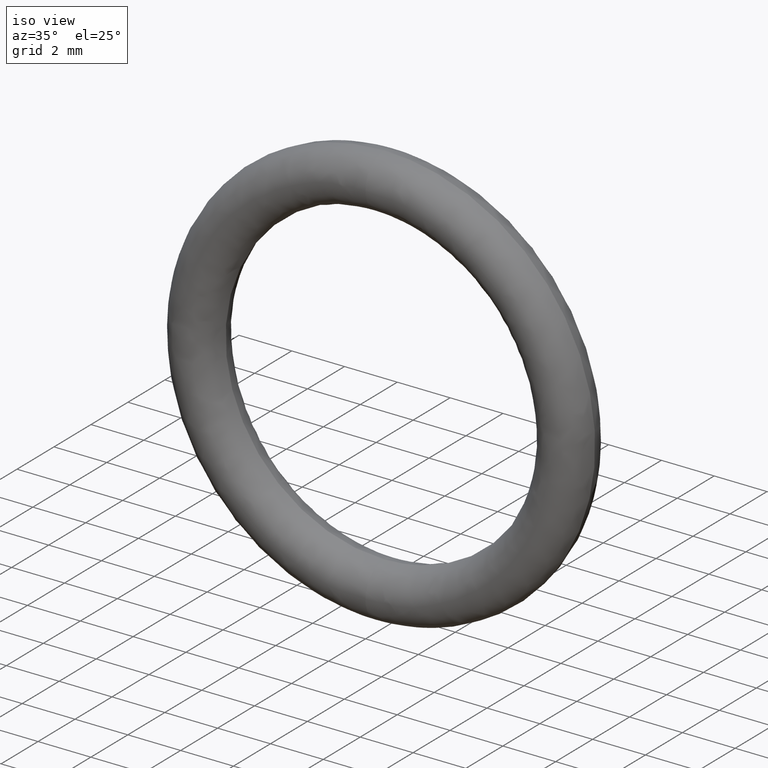
[diagram: clean part render]
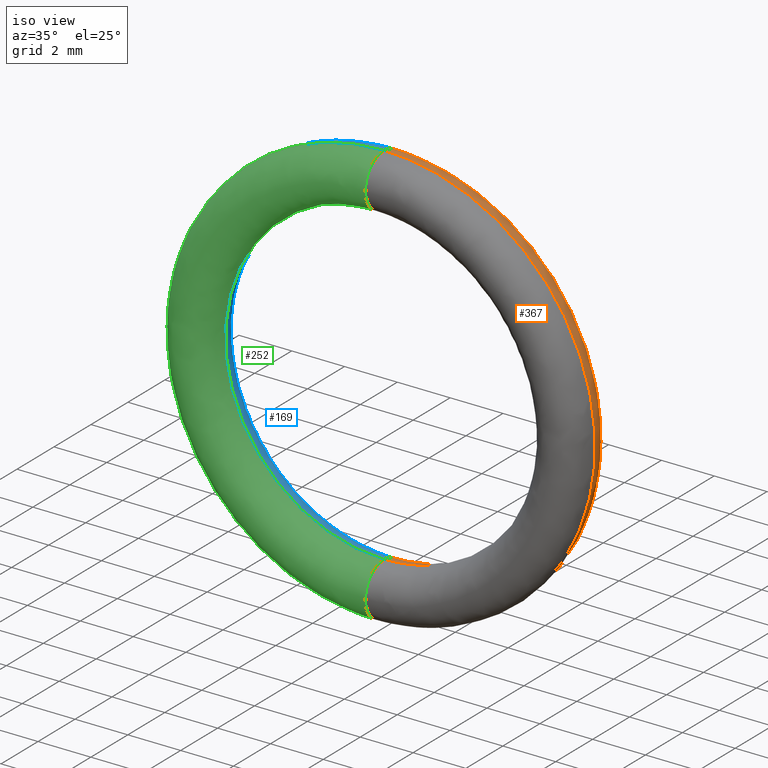
[diagram: same view with three faces highlighted in distinct colors, each labeled with its STEP entity id]
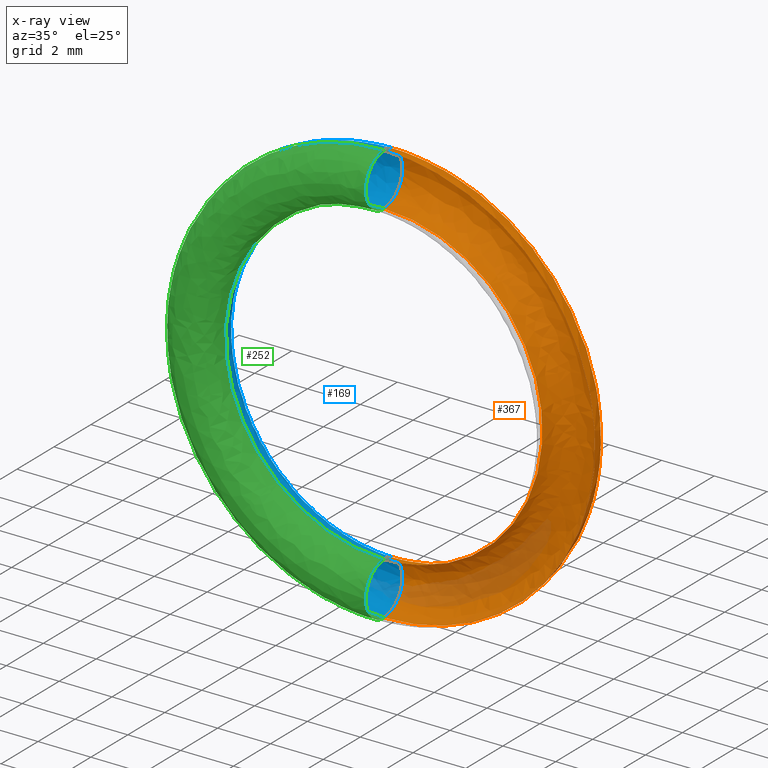
[diagram: x-ray of the same camera — body ghosted, the three highlighted faces saturated]
A machine part, iso view with three faces highlighted in distinct colors.
The next image is the same camera in x-ray (body ghosted, the three faces saturated) — at least one of them is partly hidden behind the body in this view.
Their STEP definitions:

[orange] entity #367 — the highlighted face is a freeform B-spline surface patch.
#38=CARTESIAN_POINT('',(6.123032E-017,1.000000065129646,-7.999799225598174));
#39=VERTEX_POINT('',#38);
#40=CARTESIAN_POINT('',(6.123032E-017,1.000000065129646,7.999799225598174));
#41=VERTEX_POINT('',#40);
#86=CARTESIAN_POINT('',(6.123032E-017,1.000000065129646,5.999798930573886));
#87=VERTEX_POINT('',#86);
#88=CARTESIAN_POINT('',(6.123032E-017,1.000000065129646,5.999798930573886));
#89=CARTESIAN_POINT('',(6.699125E-017,1.094086241526819,5.999764893057588));
#90=CARTESIAN_POINT('',(7.600648E-017,1.241321081152081,6.020742658278919));
#91=CARTESIAN_POINT('',(8.869589E-017,1.448561629321055,6.099223798787779));
#92=CARTESIAN_POINT('',(9.856498E-017,1.609741433330828,6.198538041564746));
#93=CARTESIAN_POINT('',(1.064438E-016,1.738416297167362,6.319562492797795));
#94=CARTESIAN_POINT('',(1.127738E-016,1.841796678862577,6.452031567535729));
#95=CARTESIAN_POINT('',(1.175067E-016,1.919093863317240,6.592469335370580));
#96=CARTESIAN_POINT('',(1.211998E-016,1.979408053927781,6.771348001574316));
#97=CARTESIAN_POINT('',(1.227582E-016,2.004859383017315,6.950510155059310));
#98=CARTESIAN_POINT('',(1.221659E-016,1.995186789553282,7.147344955253653));
#99=CARTESIAN_POINT('',(1.190040E-016,1.943547352177764,7.359123844044373));
#100=CARTESIAN_POINT('',(1.123689E-016,1.835183617097836,7.567985840433536));
#101=CARTESIAN_POINT('',(1.035203E-016,1.690670342100340,7.731378898136581));
#102=CARTESIAN_POINT('',(9.356855E-017,1.528140822511862,7.856626901353724));
#103=CARTESIAN_POINT('',(8.362729E-017,1.365782427419261,7.937110420824762));
#104=CARTESIAN_POINT('',(7.225038E-017,1.179977231378750,7.988511371198003));
#105=CARTESIAN_POINT('',(6.523766E-017,1.065447101381284,7.999808040164814));
#106=CARTESIAN_POINT('',(6.123032E-017,1.000000065129646,7.999799225598174));
#107=B_SPLINE_CURVE_WITH_KNOTS('',3,(#88,#89,#90,#91,#92,#93,#94,#95,#96,#97,#98,#99,#100,#101,#102,#103,#104,#105,#106),.UNSPECIFIED.,.F.,.U.,(4,1,1,1,1,1,1,1,1,1,1,1,1,1,1,1,4),(0.000000048395852,0.282245399074723,0.441782959219308,0.662683887416079,0.846764584853097,0.969486267368082,1.165836927367291,1.325377546549631,1.534002157690523,1.705786681027012,1.914418301691922,2.184399394362720,2.405297601570827,2.564833576208381,2.798007108692503,2.945272355178036,3.141612829193198),.UNSPECIFIED.);
#108=EDGE_CURVE('',#87,#41,#107,.T.);
#110=CARTESIAN_POINT('',(6.123032E-017,1.000000065129646,-5.999798930573886));
#111=VERTEX_POINT('',#110);
#145=CARTESIAN_POINT('',(6.123032E-017,1.000000065129646,-7.999799225598174));
#146=CARTESIAN_POINT('',(6.724200E-017,1.098181484614903,-7.999847275810469));
#147=CARTESIAN_POINT('',(7.625679E-017,1.245409055228121,-7.977925692230920));
#148=CARTESIAN_POINT('',(8.891060E-017,1.452068165282311,-7.898214146095489));
#149=CARTESIAN_POINT('',(9.770659E-017,1.595722475328188,-7.809695072823265));
#150=CARTESIAN_POINT('',(1.061236E-016,1.733186881214073,-7.686628971562596));
#151=CARTESIAN_POINT('',(1.122567E-016,1.833350977315770,-7.561471643799503));
#152=CARTESIAN_POINT('',(1.181919E-016,1.930283424277205,-7.385398818177375));
#153=CARTESIAN_POINT('',(1.217815E-016,1.988908901040322,-7.196303213653674));
#154=CARTESIAN_POINT('',(1.227826E-016,2.005258738631682,-6.991557635984930));
#155=CARTESIAN_POINT('',(1.217478E-016,1.988358287188888,-6.819948799002166));
#156=CARTESIAN_POINT('',(1.193230E-016,1.948756167662934,-6.673368474051230));
#157=CARTESIAN_POINT('',(1.151712E-016,1.880949949403756,-6.515150672830640));
#158=CARTESIAN_POINT('',(1.092023E-016,1.783467101693690,-6.367303758291324));
#159=CARTESIAN_POINT('',(9.978045E-017,1.629592200475450,-6.213427763042009));
#160=CARTESIAN_POINT('',(8.941561E-017,1.460315931040494,-6.103297730484718));
#161=CARTESIAN_POINT('',(7.600702E-017,1.241329862368832,-6.020377366189348));
#162=CARTESIAN_POINT('',(6.674086E-017,1.089996992920399,-5.999766098632553));
#163=CARTESIAN_POINT('',(6.123032E-017,1.000000065129646,-5.999798930573886));
#164=B_SPLINE_CURVE_WITH_KNOTS('',3,(#145,#146,#147,#148,#149,#150,#151,#152,#153,#154,#155,#156,#157,#158,#159,#160,#161,#162,#163),.UNSPECIFIED.,.F.,.U.,(4,1,1,1,1,1,1,1,1,1,1,1,1,1,1,1,4),(0.000000048397231,0.294523590818859,0.441782959220290,0.662683887416879,0.797675805070888,0.994028050462003,1.141296162973666,1.399001870121232,1.583070621466952,1.754874938454073,1.914418301691940,2.037136718472902,2.270304715143282,2.442113946985195,2.687554544217792,2.871631199604533,3.141612829193199),.UNSPECIFIED.);
#165=EDGE_CURVE('',#39,#111,#164,.T.);
#253=CARTESIAN_POINT('',(-0.853049262361414,0.858059928644620,-5.949074689608555));
#254=CARTESIAN_POINT('',(5.966518462962403,0.858059928644619,-6.926945622692093));
#255=CARTESIAN_POINT('',(6.009805054836837,0.858059928644619,-0.037761215738551));
#256=CARTESIAN_POINT('',(6.053613288232359,0.858059928644620,6.934443925291647));
#257=CARTESIAN_POINT('',(-0.848835448838276,0.858059928644619,5.949677393552695));
#258=CARTESIAN_POINT('',(-0.829954271315265,1.992777953043124,-5.788012682112009));
#259=CARTESIAN_POINT('',(5.804984192248258,1.992777953043123,-6.739409270230601));
#260=CARTESIAN_POINT('',(5.847098866513865,1.992777953043124,-0.036738889153379));
#261=CARTESIAN_POINT('',(5.889721059662168,1.992777953043124,6.746704567870136));
#262=CARTESIAN_POINT('',(-0.825854540284056,1.992777953043125,5.788599068777883));
#263=CARTESIAN_POINT('',(-0.992660459638239,1.999980473495015,-6.922708308148188));
#264=CARTESIAN_POINT('',(6.943006953067386,1.999980473495014,-8.060618922143100));
#265=CARTESIAN_POINT('',(6.993377887176517,1.999980473495015,-0.043941267433683));
#266=CARTESIAN_POINT('',(7.044355835364359,1.999980473495014,8.069344407098534));
#267=CARTESIAN_POINT('',(-0.987757007688549,1.999980473495015,6.923409651435867));
#268=CARTESIAN_POINT('',(-1.157327400699918,2.007269790656037,-8.071078014926346));
#269=CARTESIAN_POINT('',(8.094743889530269,2.007269790656037,-9.397750312927942));
#270=CARTESIAN_POINT('',(8.153470578678931,2.007269790656037,-0.051230440709825));
#271=CARTESIAN_POINT('',(8.212904976106982,2.007269790656037,9.407923220214888));
#272=CARTESIAN_POINT('',(-1.151610542287466,2.007269790656038,8.071895700164282));
#273=CARTESIAN_POINT('',(-1.134069551976120,0.858761071348783,-7.908880255333333));
#274=CARTESIAN_POINT('',(7.932070536487101,0.858761071348782,-9.208891520688228));
#275=CARTESIAN_POINT('',(7.989617044080013,0.858761071348782,-0.050200905040521));
#276=CARTESIAN_POINT('',(8.047857037726097,0.858761071348783,9.218859991496254));
#277=CARTESIAN_POINT('',(-1.128467580524826,0.858761071348783,7.909681508229341));
#285=(BOUNDED_SURFACE()B_SPLINE_SURFACE(2,2,((#253,#258,#263,#268,#273),(#254,#259,#264,#269,#274),(#255,#260,#265,#270,#275),(#256,#261,#266,#271,#276),(#257,#262,#267,#272,#277)),.UNSPECIFIED.,.F.,.F.,.U.)B_SPLINE_SURFACE_WITH_KNOTS((3,2,3),(3,2,3),(0.0,14.531439999640661,29.176827316886250),(0.0,1.818754919642178,3.651771484687643),.UNSPECIFIED.)GEOMETRIC_REPRESENTATION_ITEM()RATIONAL_B_SPLINE_SURFACE(((0.976104167042247,0.645557476697766,0.987979841414918,0.642872394562174,0.981329466268909),(0.645557476697766,0.426946702812661,0.653411587602073,0.425170893522315,0.649013287150841),(0.987979841414918,0.653411587602073,1.0,0.650693837681440,0.993268713725490),(0.642872394562174,0.425170893522315,0.650693837681440,0.423402470396601,0.646313831182947),(0.981329466268909,0.649013287150841,0.993268713725490,0.646313831182947,0.986582737665889)))REPRESENTATION_ITEM('')SURFACE());
#286=ORIENTED_EDGE('',*,*,#165,.T.);
#287=CARTESIAN_POINT('',(6.123032E-017,1.000000065129646,5.999798930573886));
#288=CARTESIAN_POINT('',(0.343598049324435,1.000000065129647,5.999828125249786));
#289=CARTESIAN_POINT('',(0.932614422770054,1.000000065129646,5.949057508243413));
#290=CARTESIAN_POINT('',(1.674245597403185,1.000000065129647,5.772921721760320));
#291=CARTESIAN_POINT('',(2.334877692617898,1.000000065129648,5.541114421976934));
#292=CARTESIAN_POINT('',(2.965985984569997,1.000000065129640,5.235489364396499));
#293=CARTESIAN_POINT('',(3.540778316564819,1.000000065129654,4.856488689637322));
#294=CARTESIAN_POINT('',(4.121354443139100,1.000000065129632,4.383023424097880));
#295=CARTESIAN_POINT('',(4.622439059636544,1.000000065129655,3.856726341414461));
#296=CARTESIAN_POINT('',(5.043572456794694,1.000000065129651,3.266425950397035));
#297=CARTESIAN_POINT('',(5.345000202483017,1.000000065129607,2.745580065132709));
#298=CARTESIAN_POINT('',(5.585542508858479,1.000000065129679,2.220408720512541));
#299=CARTESIAN_POINT('',(5.828948754533784,1.000000065129618,1.498591634321473));
#300=CARTESIAN_POINT('',(5.968668454643379,1.000000065129657,0.772920713236293));
#301=CARTESIAN_POINT('',(6.009325717616557,1.000000065129644,0.036872119819441));
#302=CARTESIAN_POINT('',(5.979277991918344,1.000000065129648,-0.662793795992295));
#303=CARTESIAN_POINT('',(5.863529387432481,1.000000065129640,-1.342222613900919));
#304=CARTESIAN_POINT('',(5.651724962232671,1.000000065129662,-2.048204916997430));
#305=CARTESIAN_POINT('',(5.398679354030572,1.000000065129600,-2.648677051667067));
#306=CARTESIAN_POINT('',(5.095783280891556,1.000000065129714,-3.183351686069362));
#307=CARTESIAN_POINT('',(4.759347358314790,1.000000065129634,-3.667334561151465));
#308=CARTESIAN_POINT('',(4.411184960840287,1.000000065129622,-4.081111593245169));
#309=CARTESIAN_POINT('',(3.927675283305844,1.000000065129662,-4.552909106027142));
#310=CARTESIAN_POINT('',(3.431883021186843,1.000000065129640,-4.937385770793118));
#311=CARTESIAN_POINT('',(2.791603250174965,1.000000065129649,-5.326515915135485));
#312=CARTESIAN_POINT('',(2.209877583017588,1.000000065129641,-5.592967118708097));
#313=CARTESIAN_POINT('',(1.543755340422016,1.000000065129654,-5.808487773557152));
#314=CARTESIAN_POINT('',(0.846720683720087,1.000000065129643,-5.958295807503335));
#315=CARTESIAN_POINT('',(0.306785300071044,1.000000065129622,-5.999815414916525));
#316=CARTESIAN_POINT('',(6.123032E-017,1.000000065129646,-5.999798930573886));
#317=B_SPLINE_CURVE_WITH_KNOTS('',3,(#287,#288,#289,#290,#291,#292,#293,#294,#295,#296,#297,#298,#299,#300,#301,#302,#303,#304,#305,#306,#307,#308,#309,#310,#311,#312,#313,#314,#315,#316),.UNSPECIFIED.,.F.,.U.,(4,1,1,1,1,1,1,1,1,1,1,1,1,1,1,1,1,1,1,1,1,1,1,1,1,1,1,4),(1.897359E-009,1.030790432988813,1.767081467052982,2.282483949026648,3.129216631137627,3.865506150166805,4.344094192024476,5.374897826145654,6.037560157149285,6.516148578880815,7.178807566491360,7.767840135482672,8.798644243385832,9.387663280448281,9.976682413342530,10.897045772373151,11.449258621639791,12.185548222133409,12.848211935970260,13.289983977414799,13.952643202871560,14.468045791170020,15.314777520852800,15.830179058185470,16.713725010547151,17.229131053496950,17.928598536154919,18.848953811800151),.UNSPECIFIED.);
#318=EDGE_CURVE('',#87,#111,#317,.T.);
#319=ORIENTED_EDGE('',*,*,#318,.F.);
#320=ORIENTED_EDGE('',*,*,#108,.T.);
#321=CARTESIAN_POINT('',(6.123032E-017,1.000000065129646,7.999799225598174));
#322=CARTESIAN_POINT('',(0.016361566410701,1.000000065129646,7.999723893699200));
#323=CARTESIAN_POINT('',(0.040899883316255,1.000000065129646,7.999728760947292));
#324=CARTESIAN_POINT('',(0.319043756989875,1.000000065129646,7.997591906028030));
#325=CARTESIAN_POINT('',(0.940503527475793,1.000000065129646,7.962292868805530));
#326=CARTESIAN_POINT('',(1.804953481592338,1.000000065129648,7.812295580998850));
#327=CARTESIAN_POINT('',(2.715861195705122,1.000000065129644,7.542063044688002));
#328=CARTESIAN_POINT('',(3.622243485469432,1.000000065129648,7.160108795937908));
#329=CARTESIAN_POINT('',(4.540294571916983,1.000000065129643,6.617489349067964));
#330=CARTESIAN_POINT('',(5.297392769958785,1.000000065129648,6.015323387514435));
#331=CARTESIAN_POINT('',(5.926560202739167,1.000000065129624,5.393827432612264));
#332=CARTESIAN_POINT('',(6.437947589031598,1.000000065129657,4.774587492585154));
#333=CARTESIAN_POINT('',(6.960967487864950,1.000000065129644,3.981347843358959));
#334=CARTESIAN_POINT('',(7.364118307729410,1.000000065129646,3.174284099523280));
#335=CARTESIAN_POINT('',(7.662118371435864,1.000000065129647,2.341367628683049));
#336=CARTESIAN_POINT('',(7.891754129730940,1.000000065129644,1.436425392688386));
#337=CARTESIAN_POINT('',(7.974189611077263,1.000000065129648,0.768517647842789));
#338=CARTESIAN_POINT('',(7.992766693551936,1.000000065129646,0.335320482387940));
#339=CARTESIAN_POINT('',(7.993377701892962,1.000000065129646,0.318968753104032));
#340=CARTESIAN_POINT('',(7.994428290997602,1.000000065129646,0.294445760639756));
#341=CARTESIAN_POINT('',(7.995181738071119,1.000000065129646,0.269912133432529));
#342=CARTESIAN_POINT('',(7.996084720066363,1.000000065129646,0.245384064363461));
#343=CARTESIAN_POINT('',(7.996689267935925,1.000000065129645,0.220847082451615));
#344=CARTESIAN_POINT('',(7.997675528831073,1.000000065129650,0.188139831887314));
#345=CARTESIAN_POINT('',(7.998247666850951,1.000000065129633,0.155421913201508));
#346=CARTESIAN_POINT('',(7.999018004684173,1.000000065129671,0.114525424915320));
#347=CARTESIAN_POINT('',(8.005087993700686,1.000000065129489,-0.376301918307072));
#348=CARTESIAN_POINT('',(7.949167194347720,1.000000065129692,-1.088575733862277));
#349=CARTESIAN_POINT('',(7.750731778354076,1.000000065129616,-2.025858551486733));
#350=CARTESIAN_POINT('',(7.488777286730620,1.000000065129734,-2.870804888376523));
#351=CARTESIAN_POINT('',(7.104564367484436,1.000000065129426,-3.723397434150975));
#352=CARTESIAN_POINT('',(6.651281798479459,1.000000065130158,-4.464076040523198));
#353=CARTESIAN_POINT('',(6.192868362522132,1.000000065128967,-5.082175190973934));
#354=CARTESIAN_POINT('',(5.602655152215449,1.000000065130045,-5.741492436531766));
#355=CARTESIAN_POINT('',(4.807575209603368,1.000000065129523,-6.427335659784133));
#356=CARTESIAN_POINT('',(3.924304883418637,1.000000065129664,-6.994269908992212));
#357=CARTESIAN_POINT('',(3.141465720031530,1.000000065129641,-7.370405296556141));
#358=CARTESIAN_POINT('',(2.342412431722828,1.000000065129646,-7.664639752552434));
#359=CARTESIAN_POINT('',(1.325306814309135,1.000000065129665,-7.922745769063416));
#360=CARTESIAN_POINT('',(0.490863113258697,1.000000065129636,-7.999851685940342));
#361=CARTESIAN_POINT('',(6.123032E-017,1.000000065129646,-7.999799225598174));
#362=B_SPLINE_CURVE_WITH_KNOTS('',3,(#321,#322,#323,#324,#325,#326,#327,#328,#329,#330,#331,#332,#333,#334,#335,#336,#337,#338,#339,#340,#341,#342,#343,#344,#345,#346,#347,#348,#349,#350,#351,#352,#353,#354,#355,#356,#357,#358,#359,#360,#361),.UNSPECIFIED.,.F.,.U.,(4,1,1,1,1,1,1,1,1,1,1,1,1,1,1,2,1,1,1,1,1,1,1,1,1,1,1,1,1,1,1,1,1,1,1,1,1,4),(-0.000000530903218,0.049084873708590,0.073613953553636,0.834457628583984,1.914355893639542,2.699740039298696,3.681463014281974,4.859533562579276,5.890347381144263,6.577555680080977,7.510195919455416,8.295575296051496,9.424562081530572,10.209943148642880,10.946239439943749,12.222472897757180,12.247018400990820,12.271563904224431,12.296108671865010,12.320653439505611,12.345197412878560,12.369741386251521,12.418819027399969,12.443364941643670,12.492455041429221,13.891392465297550,14.578609494242540,15.363982729373051,16.542057156524709,17.376522791128011,17.965557926791359,18.849112349170039,20.027184707614531,21.107084144625951,21.990638538771879,22.628758283773241,23.659568417782669,25.132149583051390),.UNSPECIFIED.);
#363=EDGE_CURVE('',#41,#39,#362,.T.);
#364=ORIENTED_EDGE('',*,*,#363,.T.);
#365=EDGE_LOOP('',(#286,#319,#320,#364));
#366=FACE_OUTER_BOUND('',#365,.T.);
#367=ADVANCED_FACE('',(#366),#285,.T.);

[blue] entity #169 — the highlighted face is a freeform B-spline surface patch.
#5=CARTESIAN_POINT('',(0.853049262361418,0.858059928644620,5.949074689608554));
#6=CARTESIAN_POINT('',(-5.966518462962398,0.858059928644620,6.926945622692097));
#7=CARTESIAN_POINT('',(-6.009805054836837,0.858059928644620,0.037761215738554));
#8=CARTESIAN_POINT('',(-6.053613288232365,0.858059928644620,-6.934443925291644));
#9=CARTESIAN_POINT('',(0.848835448838274,0.858059928644619,-5.949677393552695));
#10=CARTESIAN_POINT('',(0.829954271315270,1.992777953043124,5.788012682112008));
#11=CARTESIAN_POINT('',(-5.804984192248253,1.992777953043124,6.739409270230606));
#12=CARTESIAN_POINT('',(-5.847098866513865,1.992777953043124,0.036738889153382));
#13=CARTESIAN_POINT('',(-5.889721059662174,1.992777953043124,-6.746704567870134));
#14=CARTESIAN_POINT('',(0.825854540284054,1.992777953043125,-5.788599068777883));
#15=CARTESIAN_POINT('',(0.992660459638244,1.999980473495015,6.922708308148187));
#16=CARTESIAN_POINT('',(-6.943006953067382,1.999980473495016,8.060618922143105));
#17=CARTESIAN_POINT('',(-6.993377887176517,1.999980473495016,0.043941267433687));
#18=CARTESIAN_POINT('',(-7.044355835364366,1.999980473495016,-8.069344407098530));
#19=CARTESIAN_POINT('',(0.987757007688546,1.999980473495015,-6.923409651435868));
#20=CARTESIAN_POINT('',(1.157327400699925,2.007269790656037,8.071078014926346));
#21=CARTESIAN_POINT('',(-8.094743889530264,2.007269790656038,9.397750312927949));
#22=CARTESIAN_POINT('',(-8.153470578678931,2.007269790656038,0.051230440709829));
#23=CARTESIAN_POINT('',(-8.212904976106985,2.007269790656038,-9.407923220214881));
#24=CARTESIAN_POINT('',(1.151610542287464,2.007269790656038,-8.071895700164282));
#25=CARTESIAN_POINT('',(1.134069551976126,0.858761071348783,7.908880255333332));
#26=CARTESIAN_POINT('',(-7.932070536487093,0.858761071348784,9.208891520688235));
#27=CARTESIAN_POINT('',(-7.989617044080013,0.858761071348783,0.050200905040526));
#28=CARTESIAN_POINT('',(-8.047857037726105,0.858761071348784,-9.218859991496251));
#29=CARTESIAN_POINT('',(1.128467580524823,0.858761071348783,-7.909681508229341));
#37=(BOUNDED_SURFACE()B_SPLINE_SURFACE(2,2,((#5,#10,#15,#20,#25),(#6,#11,#16,#21,#26),(#7,#12,#17,#22,#27),(#8,#13,#18,#23,#28),(#9,#14,#19,#24,#29)),.UNSPECIFIED.,.F.,.F.,.U.)B_SPLINE_SURFACE_WITH_KNOTS((3,2,3),(3,2,3),(0.0,14.531439999640650,29.176827316886239),(0.0,1.818754919642178,3.651771484687643),.UNSPECIFIED.)GEOMETRIC_REPRESENTATION_ITEM()RATIONAL_B_SPLINE_SURFACE(((0.976104167042247,0.645557476697766,0.987979841414918,0.642872394562174,0.981329466268909),(0.645557476697766,0.426946702812661,0.653411587602073,0.425170893522315,0.649013287150841),(0.987979841414918,0.653411587602073,1.0,0.650693837681440,0.993268713725490),(0.642872394562174,0.425170893522315,0.650693837681440,0.423402470396601,0.646313831182947),(0.981329466268909,0.649013287150841,0.993268713725490,0.646313831182947,0.986582737665889)))REPRESENTATION_ITEM('')SURFACE());
#38=CARTESIAN_POINT('',(6.123032E-017,1.000000065129646,-7.999799225598174));
#39=VERTEX_POINT('',#38);
#40=CARTESIAN_POINT('',(6.123032E-017,1.000000065129646,7.999799225598174));
#41=VERTEX_POINT('',#40);
#42=CARTESIAN_POINT('',(6.123032E-017,1.000000065129646,-7.999799225598174));
#43=CARTESIAN_POINT('',(-0.016361566410701,1.000000065129646,-7.999723893699200));
#44=CARTESIAN_POINT('',(-0.040899883316255,1.000000065129647,-7.999728760947292));
#45=CARTESIAN_POINT('',(-0.319043756989875,1.000000065129646,-7.997591906028030));
#46=CARTESIAN_POINT('',(-0.940503527475793,1.000000065129646,-7.962292868805530));
#47=CARTESIAN_POINT('',(-1.804953481592338,1.000000065129648,-7.812295580998850));
#48=CARTESIAN_POINT('',(-2.715861195705122,1.000000065129645,-7.542063044688002));
#49=CARTESIAN_POINT('',(-3.622243485469432,1.000000065129649,-7.160108795937908));
#50=CARTESIAN_POINT('',(-4.540294571916983,1.000000065129644,-6.617489349067964));
#51=CARTESIAN_POINT('',(-5.297392769958785,1.000000065129649,-6.015323387514435));
#52=CARTESIAN_POINT('',(-5.926560202739167,1.000000065129625,-5.393827432612264));
#53=CARTESIAN_POINT('',(-6.437947589031598,1.000000065129658,-4.774587492585154));
#54=CARTESIAN_POINT('',(-6.960967487864950,1.000000065129644,-3.981347843358959));
#55=CARTESIAN_POINT('',(-7.364118307729410,1.000000065129647,-3.174284099523280));
#56=CARTESIAN_POINT('',(-7.662118371435864,1.000000065129648,-2.341367628683049));
#57=CARTESIAN_POINT('',(-7.891754129730940,1.000000065129645,-1.436425392688386));
#58=CARTESIAN_POINT('',(-7.974189611077263,1.000000065129648,-0.768517647842789));
#59=CARTESIAN_POINT('',(-7.992766693551936,1.000000065129647,-0.335320482387940));
#60=CARTESIAN_POINT('',(-7.993377701892962,1.000000065129647,-0.318968753104032));
#61=CARTESIAN_POINT('',(-7.994428290997602,1.000000065129647,-0.294445760639756));
#62=CARTESIAN_POINT('',(-7.995181738071119,1.000000065129647,-0.269912133432529));
#63=CARTESIAN_POINT('',(-7.996084720066363,1.000000065129647,-0.245384064363461));
#64=CARTESIAN_POINT('',(-7.996689267935925,1.000000065129646,-0.220847082451615));
#65=CARTESIAN_POINT('',(-7.997675528831073,1.000000065129651,-0.188139831887314));
#66=CARTESIAN_POINT('',(-7.998247666850951,1.000000065129634,-0.155421913201508));
#67=CARTESIAN_POINT('',(-7.999018004684173,1.000000065129672,-0.114525424915320));
#68=CARTESIAN_POINT('',(-8.005087993700686,1.000000065129490,0.376301918307072));
#69=CARTESIAN_POINT('',(-7.949167194347720,1.000000065129693,1.088575733862277));
#70=CARTESIAN_POINT('',(-7.750731778354076,1.000000065129616,2.025858551486733));
#71=CARTESIAN_POINT('',(-7.488777286730620,1.000000065129735,2.870804888376523));
#72=CARTESIAN_POINT('',(-7.104564367484436,1.000000065129427,3.723397434150975));
#73=CARTESIAN_POINT('',(-6.651281798479459,1.000000065130159,4.464076040523198));
#74=CARTESIAN_POINT('',(-6.192868362522132,1.000000065128968,5.082175190973934));
#75=CARTESIAN_POINT('',(-5.602655152215449,1.000000065130045,5.741492436531766));
#76=CARTESIAN_POINT('',(-4.807575209603368,1.000000065129523,6.427335659784133));
#77=CARTESIAN_POINT('',(-3.924304883418637,1.000000065129664,6.994269908992212));
#78=CARTESIAN_POINT('',(-3.141465720031530,1.000000065129641,7.370405296556141));
#79=CARTESIAN_POINT('',(-2.342412431722828,1.000000065129647,7.664639752552434));
#80=CARTESIAN_POINT('',(-1.325306814309135,1.000000065129665,7.922745769063416));
#81=CARTESIAN_POINT('',(-0.490863113258697,1.000000065129636,7.999851685940342));
#82=CARTESIAN_POINT('',(6.123032E-017,1.000000065129646,7.999799225598174));
#83=B_SPLINE_CURVE_WITH_KNOTS('',3,(#42,#43,#44,#45,#46,#47,#48,#49,#50,#51,#52,#53,#54,#55,#56,#57,#58,#59,#60,#61,#62,#63,#64,#65,#66,#67,#68,#69,#70,#71,#72,#73,#74,#75,#76,#77,#78,#79,#80,#81,#82),.UNSPECIFIED.,.F.,.U.,(4,1,1,1,1,1,1,1,1,1,1,1,1,1,1,2,1,1,1,1,1,1,1,1,1,1,1,1,1,1,1,1,1,1,1,1,1,4),(-0.000000530903218,0.049084873708590,0.073613953553636,0.834457628583984,1.914355893639542,2.699740039298696,3.681463014281974,4.859533562579276,5.890347381144263,6.577555680080977,7.510195919455416,8.295575296051496,9.424562081530572,10.209943148642880,10.946239439943749,12.222472897757180,12.247018400990820,12.271563904224431,12.296108671865010,12.320653439505611,12.345197412878560,12.369741386251521,12.418819027399969,12.443364941643670,12.492455041429221,13.891392465297550,14.578609494242540,15.363982729373051,16.542057156524709,17.376522791128011,17.965557926791359,18.849112349170039,20.027184707614531,21.107084144625951,21.990638538771879,22.628758283773241,23.659568417782669,25.132149583051390),.UNSPECIFIED.);
#84=EDGE_CURVE('',#39,#41,#83,.T.);
#85=ORIENTED_EDGE('',*,*,#84,.T.);
#86=CARTESIAN_POINT('',(6.123032E-017,1.000000065129646,5.999798930573886));
#87=VERTEX_POINT('',#86);
#88=CARTESIAN_POINT('',(6.123032E-017,1.000000065129646,5.999798930573886));
#89=CARTESIAN_POINT('',(6.699125E-017,1.094086241526819,5.999764893057588));
#90=CARTESIAN_POINT('',(7.600648E-017,1.241321081152081,6.020742658278919));
#91=CARTESIAN_POINT('',(8.869589E-017,1.448561629321055,6.099223798787779));
#92=CARTESIAN_POINT('',(9.856498E-017,1.609741433330828,6.198538041564746));
#93=CARTESIAN_POINT('',(1.064438E-016,1.738416297167362,6.319562492797795));
#94=CARTESIAN_POINT('',(1.127738E-016,1.841796678862577,6.452031567535729));
#95=CARTESIAN_POINT('',(1.175067E-016,1.919093863317240,6.592469335370580));
#96=CARTESIAN_POINT('',(1.211998E-016,1.979408053927781,6.771348001574316));
#97=CARTESIAN_POINT('',(1.227582E-016,2.004859383017315,6.950510155059310));
#98=CARTESIAN_POINT('',(1.221659E-016,1.995186789553282,7.147344955253653));
#99=CARTESIAN_POINT('',(1.190040E-016,1.943547352177764,7.359123844044373));
#100=CARTESIAN_POINT('',(1.123689E-016,1.835183617097836,7.567985840433536));
#101=CARTESIAN_POINT('',(1.035203E-016,1.690670342100340,7.731378898136581));
#102=CARTESIAN_POINT('',(9.356855E-017,1.528140822511862,7.856626901353724));
#103=CARTESIAN_POINT('',(8.362729E-017,1.365782427419261,7.937110420824762));
#104=CARTESIAN_POINT('',(7.225038E-017,1.179977231378750,7.988511371198003));
#105=CARTESIAN_POINT('',(6.523766E-017,1.065447101381284,7.999808040164814));
#106=CARTESIAN_POINT('',(6.123032E-017,1.000000065129646,7.999799225598174));
#107=B_SPLINE_CURVE_WITH_KNOTS('',3,(#88,#89,#90,#91,#92,#93,#94,#95,#96,#97,#98,#99,#100,#101,#102,#103,#104,#105,#106),.UNSPECIFIED.,.F.,.U.,(4,1,1,1,1,1,1,1,1,1,1,1,1,1,1,1,4),(0.000000048395852,0.282245399074723,0.441782959219308,0.662683887416079,0.846764584853097,0.969486267368082,1.165836927367291,1.325377546549631,1.534002157690523,1.705786681027012,1.914418301691922,2.184399394362720,2.405297601570827,2.564833576208381,2.798007108692503,2.945272355178036,3.141612829193198),.UNSPECIFIED.);
#108=EDGE_CURVE('',#87,#41,#107,.T.);
#109=ORIENTED_EDGE('',*,*,#108,.F.);
#110=CARTESIAN_POINT('',(6.123032E-017,1.000000065129646,-5.999798930573886));
#111=VERTEX_POINT('',#110);
#112=CARTESIAN_POINT('',(6.123032E-017,1.000000065129646,-5.999798930573886));
#113=CARTESIAN_POINT('',(-0.343598049324435,1.000000065129647,-5.999828125249786));
#114=CARTESIAN_POINT('',(-0.932614422770053,1.000000065129646,-5.949057508243413));
#115=CARTESIAN_POINT('',(-1.674245597403185,1.000000065129647,-5.772921721760320));
#116=CARTESIAN_POINT('',(-2.334877692617898,1.000000065129649,-5.541114421976934));
#117=CARTESIAN_POINT('',(-2.965985984569997,1.000000065129641,-5.235489364396499));
#118=CARTESIAN_POINT('',(-3.540778316564819,1.000000065129655,-4.856488689637322));
#119=CARTESIAN_POINT('',(-4.121354443139100,1.000000065129633,-4.383023424097880));
#120=CARTESIAN_POINT('',(-4.622439059636544,1.000000065129656,-3.856726341414461));
#121=CARTESIAN_POINT('',(-5.043572456794694,1.000000065129652,-3.266425950397035));
#122=CARTESIAN_POINT('',(-5.345000202483017,1.000000065129608,-2.745580065132709));
#123=CARTESIAN_POINT('',(-5.585542508858479,1.000000065129679,-2.220408720512541));
#124=CARTESIAN_POINT('',(-5.828948754533784,1.000000065129619,-1.498591634321473));
#125=CARTESIAN_POINT('',(-5.968668454643379,1.000000065129658,-0.772920713236293));
#126=CARTESIAN_POINT('',(-6.009325717616557,1.000000065129644,-0.036872119819441));
#127=CARTESIAN_POINT('',(-5.979277991918344,1.000000065129648,0.662793795992295));
#128=CARTESIAN_POINT('',(-5.863529387432481,1.000000065129641,1.342222613900919));
#129=CARTESIAN_POINT('',(-5.651724962232671,1.000000065129663,2.048204916997430));
#130=CARTESIAN_POINT('',(-5.398679354030572,1.000000065129600,2.648677051667067));
#131=CARTESIAN_POINT('',(-5.095783280891556,1.000000065129715,3.183351686069362));
#132=CARTESIAN_POINT('',(-4.759347358314790,1.000000065129634,3.667334561151465));
#133=CARTESIAN_POINT('',(-4.411184960840287,1.000000065129623,4.081111593245169));
#134=CARTESIAN_POINT('',(-3.927675283305844,1.000000065129663,4.552909106027142));
#135=CARTESIAN_POINT('',(-3.431883021186843,1.000000065129640,4.937385770793118));
#136=CARTESIAN_POINT('',(-2.791603250174965,1.000000065129650,5.326515915135485));
#137=CARTESIAN_POINT('',(-2.209877583017588,1.000000065129642,5.592967118708097));
#138=CARTESIAN_POINT('',(-1.543755340422016,1.000000065129654,5.808487773557152));
#139=CARTESIAN_POINT('',(-0.846720683720086,1.000000065129643,5.958295807503335));
#140=CARTESIAN_POINT('',(-0.306785300071044,1.000000065129622,5.999815414916525));
#141=CARTESIAN_POINT('',(6.123032E-017,1.000000065129646,5.999798930573886));
#142=B_SPLINE_CURVE_WITH_KNOTS('',3,(#112,#113,#114,#115,#116,#117,#118,#119,#120,#121,#122,#123,#124,#125,#126,#127,#128,#129,#130,#131,#132,#133,#134,#135,#136,#137,#138,#139,#140,#141),.UNSPECIFIED.,.F.,.U.,(4,1,1,1,1,1,1,1,1,1,1,1,1,1,1,1,1,1,1,1,1,1,1,1,1,1,1,4),(1.897359E-009,1.030790432988813,1.767081467052982,2.282483949026648,3.129216631137627,3.865506150166805,4.344094192024476,5.374897826145654,6.037560157149285,6.516148578880815,7.178807566491360,7.767840135482672,8.798644243385832,9.387663280448281,9.976682413342530,10.897045772373151,11.449258621639791,12.185548222133409,12.848211935970260,13.289983977414799,13.952643202871560,14.468045791170020,15.314777520852800,15.830179058185470,16.713725010547151,17.229131053496950,17.928598536154919,18.848953811800151),.UNSPECIFIED.);
#143=EDGE_CURVE('',#111,#87,#142,.T.);
#144=ORIENTED_EDGE('',*,*,#143,.F.);
#145=CARTESIAN_POINT('',(6.123032E-017,1.000000065129646,-7.999799225598174));
#146=CARTESIAN_POINT('',(6.724200E-017,1.098181484614903,-7.999847275810469));
#147=CARTESIAN_POINT('',(7.625679E-017,1.245409055228121,-7.977925692230920));
#148=CARTESIAN_POINT('',(8.891060E-017,1.452068165282311,-7.898214146095489));
#149=CARTESIAN_POINT('',(9.770659E-017,1.595722475328188,-7.809695072823265));
#150=CARTESIAN_POINT('',(1.061236E-016,1.733186881214073,-7.686628971562596));
#151=CARTESIAN_POINT('',(1.122567E-016,1.833350977315770,-7.561471643799503));
#152=CARTESIAN_POINT('',(1.181919E-016,1.930283424277205,-7.385398818177375));
#153=CARTESIAN_POINT('',(1.217815E-016,1.988908901040322,-7.196303213653674));
#154=CARTESIAN_POINT('',(1.227826E-016,2.005258738631682,-6.991557635984930));
#155=CARTESIAN_POINT('',(1.217478E-016,1.988358287188888,-6.819948799002166));
#156=CARTESIAN_POINT('',(1.193230E-016,1.948756167662934,-6.673368474051230));
#157=CARTESIAN_POINT('',(1.151712E-016,1.880949949403756,-6.515150672830640));
#158=CARTESIAN_POINT('',(1.092023E-016,1.783467101693690,-6.367303758291324));
#159=CARTESIAN_POINT('',(9.978045E-017,1.629592200475450,-6.213427763042009));
#160=CARTESIAN_POINT('',(8.941561E-017,1.460315931040494,-6.103297730484718));
#161=CARTESIAN_POINT('',(7.600702E-017,1.241329862368832,-6.020377366189348));
#162=CARTESIAN_POINT('',(6.674086E-017,1.089996992920399,-5.999766098632553));
#163=CARTESIAN_POINT('',(6.123032E-017,1.000000065129646,-5.999798930573886));
#164=B_SPLINE_CURVE_WITH_KNOTS('',3,(#145,#146,#147,#148,#149,#150,#151,#152,#153,#154,#155,#156,#157,#158,#159,#160,#161,#162,#163),.UNSPECIFIED.,.F.,.U.,(4,1,1,1,1,1,1,1,1,1,1,1,1,1,1,1,4),(0.000000048397231,0.294523590818859,0.441782959220290,0.662683887416879,0.797675805070888,0.994028050462003,1.141296162973666,1.399001870121232,1.583070621466952,1.754874938454073,1.914418301691940,2.037136718472902,2.270304715143282,2.442113946985195,2.687554544217792,2.871631199604533,3.141612829193199),.UNSPECIFIED.);
#165=EDGE_CURVE('',#39,#111,#164,.T.);
#166=ORIENTED_EDGE('',*,*,#165,.F.);
#167=EDGE_LOOP('',(#85,#109,#144,#166));
#168=FACE_OUTER_BOUND('',#167,.T.);
#169=ADVANCED_FACE('',(#168),#37,.T.);

[green] entity #252 — the highlighted face is a freeform B-spline surface patch.
#38=CARTESIAN_POINT('',(6.123032E-017,1.000000065129646,-7.999799225598174));
#39=VERTEX_POINT('',#38);
#40=CARTESIAN_POINT('',(6.123032E-017,1.000000065129646,7.999799225598174));
#41=VERTEX_POINT('',#40);
#42=CARTESIAN_POINT('',(6.123032E-017,1.000000065129646,-7.999799225598174));
#43=CARTESIAN_POINT('',(-0.016361566410701,1.000000065129646,-7.999723893699200));
#44=CARTESIAN_POINT('',(-0.040899883316255,1.000000065129647,-7.999728760947292));
#45=CARTESIAN_POINT('',(-0.319043756989875,1.000000065129646,-7.997591906028030));
#46=CARTESIAN_POINT('',(-0.940503527475793,1.000000065129646,-7.962292868805530));
#47=CARTESIAN_POINT('',(-1.804953481592338,1.000000065129648,-7.812295580998850));
#48=CARTESIAN_POINT('',(-2.715861195705122,1.000000065129645,-7.542063044688002));
#49=CARTESIAN_POINT('',(-3.622243485469432,1.000000065129649,-7.160108795937908));
#50=CARTESIAN_POINT('',(-4.540294571916983,1.000000065129644,-6.617489349067964));
#51=CARTESIAN_POINT('',(-5.297392769958785,1.000000065129649,-6.015323387514435));
#52=CARTESIAN_POINT('',(-5.926560202739167,1.000000065129625,-5.393827432612264));
#53=CARTESIAN_POINT('',(-6.437947589031598,1.000000065129658,-4.774587492585154));
#54=CARTESIAN_POINT('',(-6.960967487864950,1.000000065129644,-3.981347843358959));
#55=CARTESIAN_POINT('',(-7.364118307729410,1.000000065129647,-3.174284099523280));
#56=CARTESIAN_POINT('',(-7.662118371435864,1.000000065129648,-2.341367628683049));
#57=CARTESIAN_POINT('',(-7.891754129730940,1.000000065129645,-1.436425392688386));
#58=CARTESIAN_POINT('',(-7.974189611077263,1.000000065129648,-0.768517647842789));
#59=CARTESIAN_POINT('',(-7.992766693551936,1.000000065129647,-0.335320482387940));
#60=CARTESIAN_POINT('',(-7.993377701892962,1.000000065129647,-0.318968753104032));
#61=CARTESIAN_POINT('',(-7.994428290997602,1.000000065129647,-0.294445760639756));
#62=CARTESIAN_POINT('',(-7.995181738071119,1.000000065129647,-0.269912133432529));
#63=CARTESIAN_POINT('',(-7.996084720066363,1.000000065129647,-0.245384064363461));
#64=CARTESIAN_POINT('',(-7.996689267935925,1.000000065129646,-0.220847082451615));
#65=CARTESIAN_POINT('',(-7.997675528831073,1.000000065129651,-0.188139831887314));
#66=CARTESIAN_POINT('',(-7.998247666850951,1.000000065129634,-0.155421913201508));
#67=CARTESIAN_POINT('',(-7.999018004684173,1.000000065129672,-0.114525424915320));
#68=CARTESIAN_POINT('',(-8.005087993700686,1.000000065129490,0.376301918307072));
#69=CARTESIAN_POINT('',(-7.949167194347720,1.000000065129693,1.088575733862277));
#70=CARTESIAN_POINT('',(-7.750731778354076,1.000000065129616,2.025858551486733));
#71=CARTESIAN_POINT('',(-7.488777286730620,1.000000065129735,2.870804888376523));
#72=CARTESIAN_POINT('',(-7.104564367484436,1.000000065129427,3.723397434150975));
#73=CARTESIAN_POINT('',(-6.651281798479459,1.000000065130159,4.464076040523198));
#74=CARTESIAN_POINT('',(-6.192868362522132,1.000000065128968,5.082175190973934));
#75=CARTESIAN_POINT('',(-5.602655152215449,1.000000065130045,5.741492436531766));
#76=CARTESIAN_POINT('',(-4.807575209603368,1.000000065129523,6.427335659784133));
#77=CARTESIAN_POINT('',(-3.924304883418637,1.000000065129664,6.994269908992212));
#78=CARTESIAN_POINT('',(-3.141465720031530,1.000000065129641,7.370405296556141));
#79=CARTESIAN_POINT('',(-2.342412431722828,1.000000065129647,7.664639752552434));
#80=CARTESIAN_POINT('',(-1.325306814309135,1.000000065129665,7.922745769063416));
#81=CARTESIAN_POINT('',(-0.490863113258697,1.000000065129636,7.999851685940342));
#82=CARTESIAN_POINT('',(6.123032E-017,1.000000065129646,7.999799225598174));
#83=B_SPLINE_CURVE_WITH_KNOTS('',3,(#42,#43,#44,#45,#46,#47,#48,#49,#50,#51,#52,#53,#54,#55,#56,#57,#58,#59,#60,#61,#62,#63,#64,#65,#66,#67,#68,#69,#70,#71,#72,#73,#74,#75,#76,#77,#78,#79,#80,#81,#82),.UNSPECIFIED.,.F.,.U.,(4,1,1,1,1,1,1,1,1,1,1,1,1,1,1,2,1,1,1,1,1,1,1,1,1,1,1,1,1,1,1,1,1,1,1,1,1,4),(-0.000000530903218,0.049084873708590,0.073613953553636,0.834457628583984,1.914355893639542,2.699740039298696,3.681463014281974,4.859533562579276,5.890347381144263,6.577555680080977,7.510195919455416,8.295575296051496,9.424562081530572,10.209943148642880,10.946239439943749,12.222472897757180,12.247018400990820,12.271563904224431,12.296108671865010,12.320653439505611,12.345197412878560,12.369741386251521,12.418819027399969,12.443364941643670,12.492455041429221,13.891392465297550,14.578609494242540,15.363982729373051,16.542057156524709,17.376522791128011,17.965557926791359,18.849112349170039,20.027184707614531,21.107084144625951,21.990638538771879,22.628758283773241,23.659568417782669,25.132149583051390),.UNSPECIFIED.);
#84=EDGE_CURVE('',#39,#41,#83,.T.);
#86=CARTESIAN_POINT('',(6.123032E-017,1.000000065129646,5.999798930573886));
#87=VERTEX_POINT('',#86);
#110=CARTESIAN_POINT('',(6.123032E-017,1.000000065129646,-5.999798930573886));
#111=VERTEX_POINT('',#110);
#112=CARTESIAN_POINT('',(6.123032E-017,1.000000065129646,-5.999798930573886));
#113=CARTESIAN_POINT('',(-0.343598049324435,1.000000065129647,-5.999828125249786));
#114=CARTESIAN_POINT('',(-0.932614422770053,1.000000065129646,-5.949057508243413));
#115=CARTESIAN_POINT('',(-1.674245597403185,1.000000065129647,-5.772921721760320));
#116=CARTESIAN_POINT('',(-2.334877692617898,1.000000065129649,-5.541114421976934));
#117=CARTESIAN_POINT('',(-2.965985984569997,1.000000065129641,-5.235489364396499));
#118=CARTESIAN_POINT('',(-3.540778316564819,1.000000065129655,-4.856488689637322));
#119=CARTESIAN_POINT('',(-4.121354443139100,1.000000065129633,-4.383023424097880));
#120=CARTESIAN_POINT('',(-4.622439059636544,1.000000065129656,-3.856726341414461));
#121=CARTESIAN_POINT('',(-5.043572456794694,1.000000065129652,-3.266425950397035));
#122=CARTESIAN_POINT('',(-5.345000202483017,1.000000065129608,-2.745580065132709));
#123=CARTESIAN_POINT('',(-5.585542508858479,1.000000065129679,-2.220408720512541));
#124=CARTESIAN_POINT('',(-5.828948754533784,1.000000065129619,-1.498591634321473));
#125=CARTESIAN_POINT('',(-5.968668454643379,1.000000065129658,-0.772920713236293));
#126=CARTESIAN_POINT('',(-6.009325717616557,1.000000065129644,-0.036872119819441));
#127=CARTESIAN_POINT('',(-5.979277991918344,1.000000065129648,0.662793795992295));
#128=CARTESIAN_POINT('',(-5.863529387432481,1.000000065129641,1.342222613900919));
#129=CARTESIAN_POINT('',(-5.651724962232671,1.000000065129663,2.048204916997430));
#130=CARTESIAN_POINT('',(-5.398679354030572,1.000000065129600,2.648677051667067));
#131=CARTESIAN_POINT('',(-5.095783280891556,1.000000065129715,3.183351686069362));
#132=CARTESIAN_POINT('',(-4.759347358314790,1.000000065129634,3.667334561151465));
#133=CARTESIAN_POINT('',(-4.411184960840287,1.000000065129623,4.081111593245169));
#134=CARTESIAN_POINT('',(-3.927675283305844,1.000000065129663,4.552909106027142));
#135=CARTESIAN_POINT('',(-3.431883021186843,1.000000065129640,4.937385770793118));
#136=CARTESIAN_POINT('',(-2.791603250174965,1.000000065129650,5.326515915135485));
#137=CARTESIAN_POINT('',(-2.209877583017588,1.000000065129642,5.592967118708097));
#138=CARTESIAN_POINT('',(-1.543755340422016,1.000000065129654,5.808487773557152));
#139=CARTESIAN_POINT('',(-0.846720683720086,1.000000065129643,5.958295807503335));
#140=CARTESIAN_POINT('',(-0.306785300071044,1.000000065129622,5.999815414916525));
#141=CARTESIAN_POINT('',(6.123032E-017,1.000000065129646,5.999798930573886));
#142=B_SPLINE_CURVE_WITH_KNOTS('',3,(#112,#113,#114,#115,#116,#117,#118,#119,#120,#121,#122,#123,#124,#125,#126,#127,#128,#129,#130,#131,#132,#133,#134,#135,#136,#137,#138,#139,#140,#141),.UNSPECIFIED.,.F.,.U.,(4,1,1,1,1,1,1,1,1,1,1,1,1,1,1,1,1,1,1,1,1,1,1,1,1,1,1,4),(1.897359E-009,1.030790432988813,1.767081467052982,2.282483949026648,3.129216631137627,3.865506150166805,4.344094192024476,5.374897826145654,6.037560157149285,6.516148578880815,7.178807566491360,7.767840135482672,8.798644243385832,9.387663280448281,9.976682413342530,10.897045772373151,11.449258621639791,12.185548222133409,12.848211935970260,13.289983977414799,13.952643202871560,14.468045791170020,15.314777520852800,15.830179058185470,16.713725010547151,17.229131053496950,17.928598536154919,18.848953811800151),.UNSPECIFIED.);
#143=EDGE_CURVE('',#111,#87,#142,.T.);
#170=CARTESIAN_POINT('',(1.134055317539124,1.141940201614673,7.908780985885920));
#171=CARTESIAN_POINT('',(-7.931970975963531,1.141940201614674,9.208775933962548));
#172=CARTESIAN_POINT('',(-7.989516761253190,1.141940201614674,0.050200274936650));
#173=CARTESIAN_POINT('',(-8.047756023891628,1.141940201614674,-9.218744279649869));
#174=CARTESIAN_POINT('',(1.128453416401771,1.141940201614674,-7.909582228724888));
#175=CARTESIAN_POINT('',(1.157150308585271,0.007222177216169,8.069842993382457));
#176=CARTESIAN_POINT('',(-8.093505246677680,0.007222177216170,9.396312286424040));
#177=CARTESIAN_POINT('',(-8.152222949576165,0.007222177216170,0.051222601521822));
#178=CARTESIAN_POINT('',(-8.211648252461815,0.007222177216170,-9.406483637071375));
#179=CARTESIAN_POINT('',(1.151434324955992,0.007222177216169,-8.070660553499703));
#180=CARTESIAN_POINT('',(0.994444120262297,0.000019656764277,6.935147367346283));
#181=CARTESIAN_POINT('',(-6.955482485858549,0.000019656764278,8.075102634511541));
#182=CARTESIAN_POINT('',(-7.005943928913513,0.000019656764278,0.044020223241518));
#183=CARTESIAN_POINT('',(-7.057013476759630,0.000019656764278,-8.083843797842985));
#184=CARTESIAN_POINT('',(0.989531857551498,0.000019656764277,-6.935849970841714));
#185=CARTESIAN_POINT('',(0.829777179200616,-0.007269660396746,5.786777660568120));
#186=CARTESIAN_POINT('',(-5.803745549395672,-0.007269660396745,6.737971243726702));
#187=CARTESIAN_POINT('',(-5.845851237411099,-0.007269660396745,0.036731049965375));
#188=CARTESIAN_POINT('',(-5.888464336017004,-0.007269660396745,-6.745264984726631));
#189=CARTESIAN_POINT('',(0.825678322952581,-0.007269660396746,-5.787363922113300));
#190=CARTESIAN_POINT('',(0.853035027924416,1.141239058910509,5.948975420161140));
#191=CARTESIAN_POINT('',(-5.966418902438837,1.141239058910509,6.926830035966412));
#192=CARTESIAN_POINT('',(-6.009704772010014,1.141239058910509,0.037760585634678));
#193=CARTESIAN_POINT('',(-6.053512274397889,1.141239058910510,-6.934328213445265));
#194=CARTESIAN_POINT('',(0.848821284715221,1.141239058910509,-5.949578114048240));
#202=(BOUNDED_SURFACE()B_SPLINE_SURFACE(2,2,((#170,#175,#180,#185,#190),(#171,#176,#181,#186,#191),(#172,#177,#182,#187,#192),(#173,#178,#183,#188,#193),(#174,#179,#184,#189,#194)),.UNSPECIFIED.,.F.,.F.,.U.)B_SPLINE_SURFACE_WITH_KNOTS((3,2,3),(3,2,3),(0.0,14.531257606182630,29.176461099744049),(0.0,1.818754919642178,3.651771484687642),.UNSPECIFIED.)GEOMETRIC_REPRESENTATION_ITEM()RATIONAL_B_SPLINE_SURFACE(((0.976104167042247,0.645557476697766,0.987979841414918,0.642872394562174,0.981329466268909),(0.645557476697766,0.426946702812661,0.653411587602073,0.425170893522315,0.649013287150841),(0.987979841414918,0.653411587602073,1.0,0.650693837681440,0.993268713725490),(0.642872394562174,0.425170893522315,0.650693837681440,0.423402470396601,0.646313831182947),(0.981329466268909,0.649013287150841,0.993268713725490,0.646313831182947,0.986582737665889)))REPRESENTATION_ITEM('')SURFACE());
#203=ORIENTED_EDGE('',*,*,#143,.T.);
#204=CARTESIAN_POINT('',(6.123032E-017,1.000000065129646,7.999799225598174));
#205=CARTESIAN_POINT('',(5.772375E-017,0.942731432214856,7.999804015812817));
#206=CARTESIAN_POINT('',(5.071078E-017,0.828197186395062,7.989932565669331));
#207=CARTESIAN_POINT('',(3.952836E-017,0.645568468153060,7.941809235460875));
#208=CARTESIAN_POINT('',(2.775143E-017,0.453230261742252,7.847953467907930));
#209=CARTESIAN_POINT('',(1.780277E-017,0.290750910516458,7.714597586941619));
#210=CARTESIAN_POINT('',(1.036746E-017,0.169319098121262,7.564743578688201));
#211=CARTESIAN_POINT('',(5.906683E-018,0.096466640915268,7.436139944337176));
#212=CARTESIAN_POINT('',(2.513172E-018,0.041044568149610,7.295047693743469));
#213=CARTESIAN_POINT('',(4.220694E-019,0.006893144366927,7.151246033456110));
#214=CARTESIAN_POINT('',(-2.047231E-019,-0.003343493007774,6.999761140191614));
#215=CARTESIAN_POINT('',(4.782183E-019,0.007810156048274,6.848538152575577));
#216=CARTESIAN_POINT('',(2.736097E-018,0.044685330354228,6.684290406651734));
#217=CARTESIAN_POINT('',(7.968326E-018,0.130136932877310,6.488221891996548));
#218=CARTESIAN_POINT('',(1.600814E-017,0.261441392386629,6.313443176946199));
#219=CARTESIAN_POINT('',(2.615658E-017,0.427183444004335,6.172250877375891));
#220=CARTESIAN_POINT('',(3.561127E-017,0.581595399533175,6.086029621173132));
#221=CARTESIAN_POINT('',(4.745546E-017,0.775032036979412,6.018149951725207));
#222=CARTESIAN_POINT('',(5.571975E-017,0.910002624721940,5.999769683618724));
#223=CARTESIAN_POINT('',(6.123032E-017,1.000000065129646,5.999798930573886));
#224=B_SPLINE_CURVE_WITH_KNOTS('',3,(#204,#205,#206,#207,#208,#209,#210,#211,#212,#213,#214,#215,#216,#217,#218,#219,#220,#221,#222,#223),.UNSPECIFIED.,.F.,.U.,(4,1,1,1,1,1,1,1,1,1,1,1,1,1,1,1,1,4),(0.000000048393886,0.171806354481394,0.343610500745760,0.564504549311272,0.809948070478338,0.969486267367048,1.141296162972477,1.251738411875066,1.423554275112014,1.583070621466473,1.705786681026789,1.877601379775426,2.086225605820565,2.343937646429298,2.528017481647827,2.736640513510794,2.871631199604540,3.141612829193202),.UNSPECIFIED.);
#225=EDGE_CURVE('',#41,#87,#224,.T.);
#226=ORIENTED_EDGE('',*,*,#225,.F.);
#227=ORIENTED_EDGE('',*,*,#84,.F.);
#228=CARTESIAN_POINT('',(6.123032E-017,1.000000065129646,-5.999798930573886));
#229=CARTESIAN_POINT('',(5.772375E-017,0.942731510011613,-5.999794565458409));
#230=CARTESIAN_POINT('',(5.071078E-017,0.828197247126618,-6.009665012932077));
#231=CARTESIAN_POINT('',(3.928506E-017,0.641594905199825,-6.058830819233335));
#232=CARTESIAN_POINT('',(2.821403E-017,0.460785272375216,-6.148457578668931));
#233=CARTESIAN_POINT('',(1.720973E-017,0.281065583608063,-6.292288849324481));
#234=CARTESIAN_POINT('',(9.223065E-018,0.150629057958838,-6.457320347259782));
#235=CARTESIAN_POINT('',(3.821326E-018,0.062409049006896,-6.638134582988915));
#236=CARTESIAN_POINT('',(3.889045E-019,0.006351502830739,-6.831351663590546));
#237=CARTESIAN_POINT('',(-4.455005E-019,-0.007275815592566,-7.032991085567260));
#238=CARTESIAN_POINT('',(1.326318E-018,0.021661133777770,-7.227930568629203));
#239=CARTESIAN_POINT('',(4.420396E-018,0.072192931287458,-7.384103886999297));
#240=CARTESIAN_POINT('',(9.793694E-018,0.159948447119341,-7.555862624394680));
#241=CARTESIAN_POINT('',(1.822147E-017,0.297588953400467,-7.725701336706410));
#242=CARTESIAN_POINT('',(2.910996E-017,0.475417350790433,-7.859265312396026));
#243=CARTESIAN_POINT('',(3.956445E-017,0.646157846709790,-7.940006415820217));
#244=CARTESIAN_POINT('',(4.995963E-017,0.815929564137575,-7.988111081865183));
#245=CARTESIAN_POINT('',(5.722299E-017,0.934553247188000,-7.999807604531839));
#246=CARTESIAN_POINT('',(6.123032E-017,1.000000065129646,-7.999799225598174));
#247=B_SPLINE_CURVE_WITH_KNOTS('',3,(#228,#229,#230,#231,#232,#233,#234,#235,#236,#237,#238,#239,#240,#241,#242,#243,#244,#245,#246),.UNSPECIFIED.,.F.,.U.,(4,1,1,1,1,1,1,1,1,1,1,1,1,1,1,1,4),(0.000000048389992,0.171806354477838,0.343610500742554,0.576778597558806,0.773131606151560,1.030842611569627,1.202650344198948,1.374465893751411,1.632163585016043,1.803963085201322,1.963505441267987,2.123042870257298,2.380754134119892,2.613922765796282,2.785731176230774,2.945272355178031,3.141612829193200),.UNSPECIFIED.);
#248=EDGE_CURVE('',#111,#39,#247,.T.);
#249=ORIENTED_EDGE('',*,*,#248,.F.);
#250=EDGE_LOOP('',(#203,#226,#227,#249));
#251=FACE_OUTER_BOUND('',#250,.T.);
#252=ADVANCED_FACE('',(#251),#202,.T.);